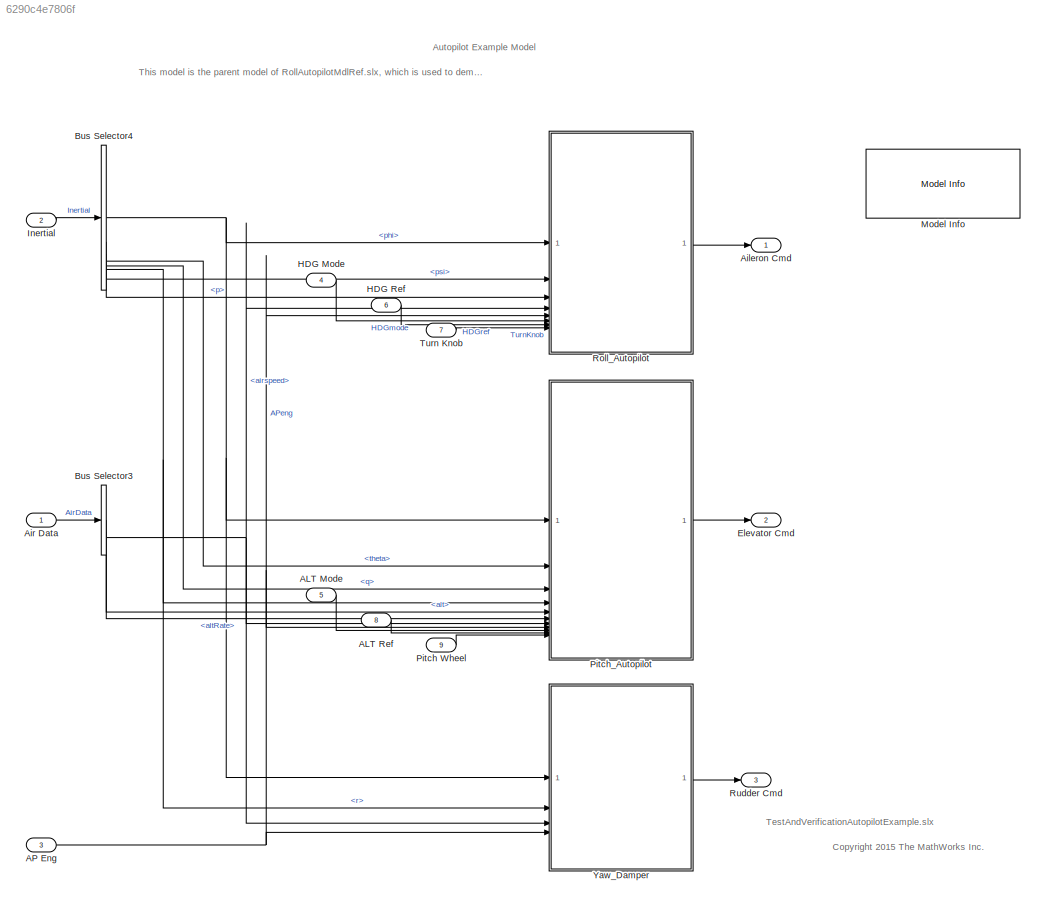
MODEL slx_6290c4e7806f
KIND model
CONFIG AbsTol = 1e-3
CONFIG EnableMultiTasking = on
CONFIG FixedStep = 1/40
CONFIG MaxStep = 1/40
CONFIG MinStep = auto
CONFIG PreLoadFcn = load asbdhc2_init;\nAutopilot_bus;
CONFIG RelTol = 1e-2
CONFIG SampleTimeConstraint = Unconstrained
CONFIG SolverName = FixedStepDiscrete
CONFIG StartTime = 0.0
CONFIG StopTime = 25
WORKSPACE source: mxarray member
WORKSPACE beaver_init_roll = 0
WORKSPACE tmp20121902TempDataBlockParam11960188 = 1
WORKSPACE tmp20121902TempDataBlockParam15378051 = 1
WORKSPACE tmp20121902TempDataBlockParam16564336 = 1
WORKSPACE tmp2399823TempDataBlockParam27430435 = 11
WORKSPACE tmp2399823TempDataBlockParam30328219 = 20
WORKSPACE tmp2399823TempDataBlockParam8793363 = 1
BLOCK [Inport] ALT Mode
  OutDataTypeStr = boolean
  OutMax = 1
  OutMin = 0
  Port = 5
  PortDimensions = 1
  SampleTime = [0.025000000000000001,0]
  SamplingMode = Sample based
  SignalType = real
BLOCK [Inport] ALT Ref
  OutDataTypeStr = double
  OutMax = 65000
  OutMin = 0
  Port = 8
  PortDimensions = 1
  SampleTime = [0.025000000000000001,0]
  SamplingMode = Sample based
  SignalType = real
BLOCK [Inport] AP Eng
  OutDataTypeStr = boolean
  OutMax = 1
  OutMin = 0
  Port = 3
  PortDimensions = 1
  SampleTime = [0.025000000000000001,0]
  SamplingMode = Sample based
  SignalType = real
BLOCK [Outport] Aileron Cmd
  OutDataTypeStr = double
  PortDimensions = 1
  SampleTime = [0.025000000000000001,0]
  SamplingMode = Sample based
  SignalType = real
  VectorParamsAs1DForOutWhenUnconnected = off
BLOCK [Inport] Air Data
  BusOutputAsStruct = on
  OutDataTypeStr = Bus: slBus1
  SampleTime = [0.025000000000000001,0]
BLOCK [BusSelector] Bus Selector3
  OutputSignals = alt,altRate,airspeed
BLOCK [BusSelector] Bus Selector4
  OutputSignals = phi,psi,p,theta,q,r
BLOCK [Outport] Elevator Cmd
  OutDataTypeStr = double
  Port = 2
  PortDimensions = 1
  SampleTime = [0.025000000000000001,0]
  SamplingMode = Sample based
  SignalType = real
  VectorParamsAs1DForOutWhenUnconnected = off
BLOCK [Inport] HDG Mode
  OutDataTypeStr = boolean
  OutMax = 1
  OutMin = 0
  Port = 4
  PortDimensions = 1
  SampleTime = [0.025000000000000001,0]
  SamplingMode = Sample based
  SignalType = real
BLOCK [Inport] HDG Ref
  OutDataTypeStr = double
  OutMax = 180
  OutMin = -180
  Port = 6
  PortDimensions = 1
  SampleTime = [0.025000000000000001,0]
  SamplingMode = Sample based
  SignalType = real
BLOCK [Inport] Inertial
  BusOutputAsStruct = on
  OutDataTypeStr = Bus: slBus2
  Port = 2
  SampleTime = [0.025000000000000001,0]
BLOCK [Reference] Model Info  REF=simulink/Model-Wide
Utilities/Model Info
  SourceBlock = simulink/Model-Wide\nUtilities/Model Info
  SourceType = CMBlock
BLOCK [Inport] Pitch Wheel
  OutDataTypeStr = double
  OutMax = 30
  OutMin = -30
  Port = 9
  PortDimensions = 1
  SampleTime = [0.025000000000000001,0]
  SamplingMode = Sample based
  SignalType = real
BLOCK [ModelReference] Pitch_Autopilot
  ModelNameDialog = PitchAutopilotMdlRef
  ModelReferenceVersion = 17.0
  UsingDefaultArgumentValue = 0,0,0
BLOCK [ModelReference] Roll_Autopilot
  ModelNameDialog = RollAutopilotMdlRef
  ModelReferenceVersion = 11.0
  UsingDefaultArgumentValue = 0,0,0,0
BLOCK [Outport] Rudder Cmd
  OutDataTypeStr = double
  Port = 3
  PortDimensions = 1
  SampleTime = [0.025000000000000001,0]
  SamplingMode = Sample based
  SignalType = real
  VectorParamsAs1DForOutWhenUnconnected = off
BLOCK [Inport] Turn Knob
  OutDataTypeStr = double
  OutMax = 45
  OutMin = -45
  Port = 7
  PortDimensions = 1
  SampleTime = [0.025000000000000001,0]
  SamplingMode = Sample based
  SignalType = real
BLOCK [ModelReference] Yaw_Damper
  ModelNameDialog = YawDamperAutopilotMdlRef
  ModelReferenceVersion = 12.0
  ParameterArgumentNames = rateGain
  ParameterArgumentValues = 1.0
  UsingDefaultArgumentValue = 0
ANNOTATION (root): This model is the parent model of RollAutopilotMdlRef.slx, which is used to demonstrate requirements-based testing.
ANNOTATION (root): Autopilot Example Model
ANNOTATION (root): <copyright redacted>
ANNOTATION (root): TestAndVerificationAutopilotExample.slx
LINE ALT Mode:1 -> Pitch_Autopilot:9
LINE ALT Ref:1 -> Pitch_Autopilot:10
NET AP Eng:1 -> Pitch_Autopilot:8, Roll_Autopilot:5, Yaw_Damper:4
LINE Air Data:1 -> Bus Selector3:1
LINE Bus Selector3:1 -> Pitch_Autopilot:5
LINE Bus Selector3:2 -> Pitch_Autopilot:6
NET Bus Selector3:3 -> Pitch_Autopilot:7, Roll_Autopilot:4, Yaw_Damper:3
NET Bus Selector4:1 -> Pitch_Autopilot:1, Roll_Autopilot:1, Yaw_Damper:1
LINE Bus Selector4:2 -> Roll_Autopilot:2
LINE Bus Selector4:3 -> Roll_Autopilot:3
LINE Bus Selector4:4 -> Pitch_Autopilot:2
LINE Bus Selector4:5 -> Pitch_Autopilot:3
NET Bus Selector4:6 -> Pitch_Autopilot:4, Yaw_Damper:2
LINE HDG Mode:1 -> Roll_Autopilot:6
LINE HDG Ref:1 -> Roll_Autopilot:7
LINE Inertial:1 -> Bus Selector4:1
LINE Pitch Wheel:1 -> Pitch_Autopilot:11
LINE Pitch_Autopilot:1 -> Elevator Cmd:1
LINE Roll_Autopilot:1 -> Aileron Cmd:1
LINE Turn Knob:1 -> Roll_Autopilot:8
LINE Yaw_Damper:1 -> Rudder Cmd:1
note: NET lines group one-source signal fan-out (src -> all destinations, sorted); 1:1 wires keep LINE
